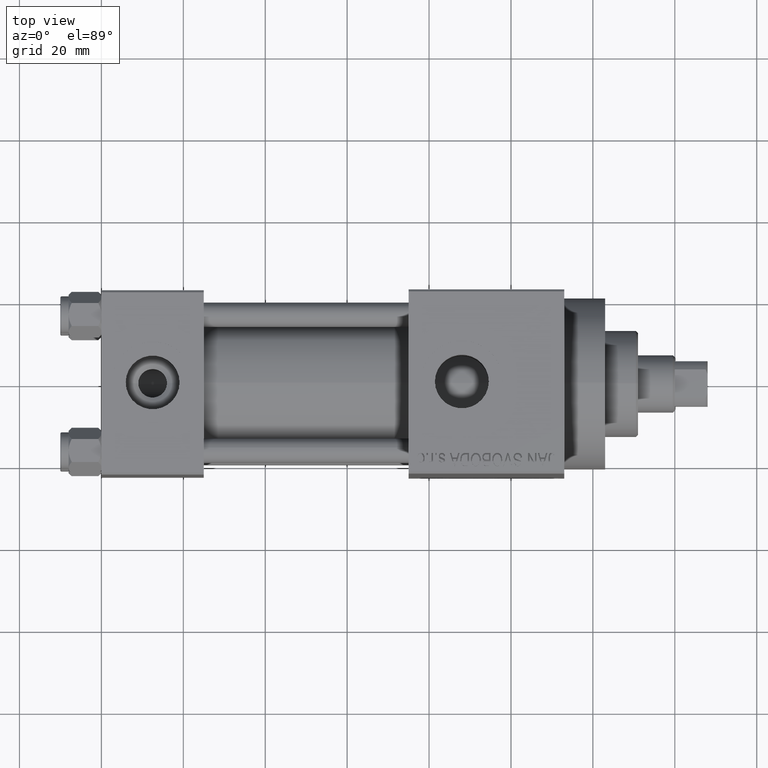
[diagram: clean part render]
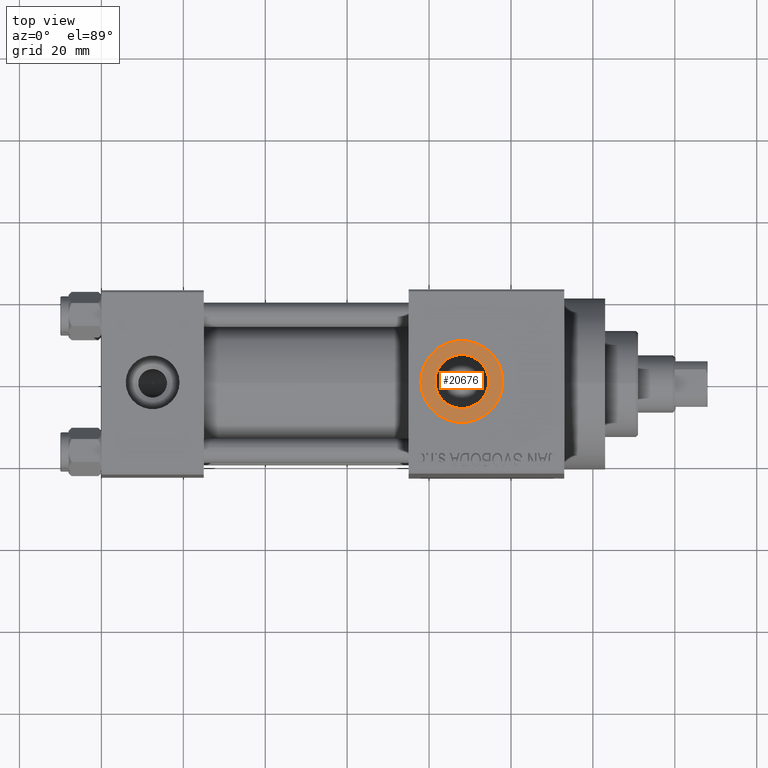
[diagram: same view with one face highlighted and labeled with its STEP entity id]
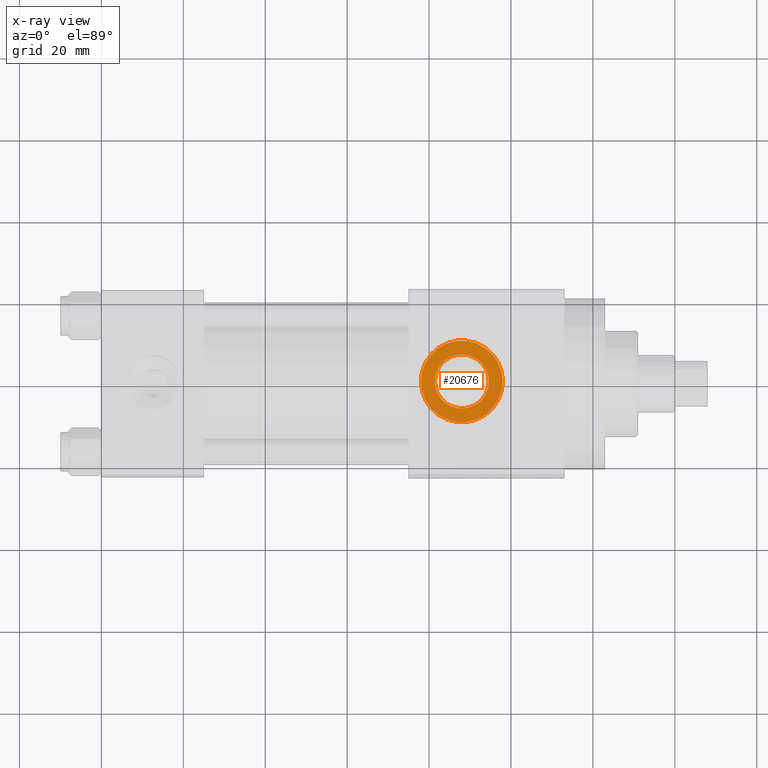
[diagram: x-ray of the same camera — body ghosted, the highlighted face saturated]
A machine part, top view. The second image highlights one B-rep face of the part: STEP entity #20676.
The next image is the same camera in x-ray: the body ghosted, the highlighted face saturated — about 0% of this face is hidden behind the body in this view.
In plain terms, the highlighted planar face has unit normal (0, 0, 1).
Its self-contained STEP definition (entity closure, byte-faithful):
#678 = CIRCLE ( 'NONE', #47117, 10.00000000000000888 ) ;
#1259 = EDGE_CURVE ( 'NONE', #32584, #33615, #7125, .T. ) ;
#4491 = CIRCLE ( 'NONE', #7535, 6.580000000000002736 ) ;
#6304 = CARTESIAN_POINT ( 'NONE',  ( 94.58000000000001251, 8.058175938389587461E-16, 34.80000000000000426 ) ) ;
#7125 = CIRCLE ( 'NONE', #41372, 6.580000000000002736 ) ;
#7535 = AXIS2_PLACEMENT_3D ( 'NONE', #32176, #38875, #28368 ) ;
#10655 = DIRECTION ( 'NONE',  ( -0.000000000000000000, -0.000000000000000000, -1.000000000000000000 ) ) ;
#11207 = ORIENTED_EDGE ( 'NONE', *, *, #37924, .T. ) ;
#11410 = FACE_OUTER_BOUND ( 'NONE', #43674, .T. ) ;
#12688 = CARTESIAN_POINT ( 'NONE',  ( 88.00000000000001421, 0.000000000000000000, 34.80000000000000426 ) ) ;
#13517 = CARTESIAN_POINT ( 'NONE',  ( 88.00000000000001421, 0.000000000000000000, 34.80000000000000426 ) ) ;
#15201 = ORIENTED_EDGE ( 'NONE', *, *, #37629, .T. ) ;
#15299 = EDGE_LOOP ( 'NONE', ( #15201, #19746 ) ) ;
#16584 = VERTEX_POINT ( 'NONE', #28769 ) ;
#18200 = CARTESIAN_POINT ( 'NONE',  ( 81.42000000000000171, 0.000000000000000000, 34.80000000000000426 ) ) ;
#19746 = ORIENTED_EDGE ( 'NONE', *, *, #1259, .T. ) ;
#20059 = DIRECTION ( 'NONE',  ( 1.000000000000000000, 0.000000000000000000, 0.000000000000000000 ) ) ;
#20676 = ADVANCED_FACE ( 'NONE', ( #43810, #11410 ), #29510, .T. ) ;
#22527 = VERTEX_POINT ( 'NONE', #28975 ) ;
#25402 = ORIENTED_EDGE ( 'NONE', *, *, #40966, .T. ) ;
#28368 = DIRECTION ( 'NONE',  ( 1.000000000000000000, 0.000000000000000000, 0.000000000000000000 ) ) ;
#28523 = DIRECTION ( 'NONE',  ( 1.000000000000000000, 0.000000000000000000, 0.000000000000000000 ) ) ;
#28542 = DIRECTION ( 'NONE',  ( 1.000000000000000000, 0.000000000000000000, 0.000000000000000000 ) ) ;
#28769 = CARTESIAN_POINT ( 'NONE',  ( 98.00000000000001421, 0.000000000000000000, 34.80000000000000426 ) ) ;
#28975 = CARTESIAN_POINT ( 'NONE',  ( 78.00000000000000000, 1.224646799147354440E-15, 34.80000000000000426 ) ) ;
#29039 = CARTESIAN_POINT ( 'NONE',  ( 88.00000000000001421, 0.000000000000000000, 34.80000000000000426 ) ) ;
#29510 = PLANE ( 'NONE',  #32999 ) ;
#32176 = CARTESIAN_POINT ( 'NONE',  ( 88.00000000000001421, 0.000000000000000000, 34.80000000000000426 ) ) ;
#32584 = VERTEX_POINT ( 'NONE', #6304 ) ;
#32845 = DIRECTION ( 'NONE',  ( 0.000000000000000000, 0.000000000000000000, 1.000000000000000000 ) ) ;
#32999 = AXIS2_PLACEMENT_3D ( 'NONE', #29039, #32845, #40248 ) ;
#33615 = VERTEX_POINT ( 'NONE', #18200 ) ;
#35241 = DIRECTION ( 'NONE',  ( 0.000000000000000000, 0.000000000000000000, 1.000000000000000000 ) ) ;
#37629 = EDGE_CURVE ( 'NONE', #33615, #32584, #4491, .T. ) ;
#37765 = CIRCLE ( 'NONE', #42316, 10.00000000000000888 ) ;
#37924 = EDGE_CURVE ( 'NONE', #22527, #16584, #678, .T. ) ;
#38192 = DIRECTION ( 'NONE',  ( 0.000000000000000000, 0.000000000000000000, 1.000000000000000000 ) ) ;
#38875 = DIRECTION ( 'NONE',  ( -0.000000000000000000, -0.000000000000000000, -1.000000000000000000 ) ) ;
#39053 = CARTESIAN_POINT ( 'NONE',  ( 88.00000000000001421, 0.000000000000000000, 34.80000000000000426 ) ) ;
#40248 = DIRECTION ( 'NONE',  ( 1.000000000000000000, 0.000000000000000000, -0.000000000000000000 ) ) ;
#40966 = EDGE_CURVE ( 'NONE', #16584, #22527, #37765, .T. ) ;
#41372 = AXIS2_PLACEMENT_3D ( 'NONE', #13517, #10655, #28523 ) ;
#42316 = AXIS2_PLACEMENT_3D ( 'NONE', #12688, #38192, #20059 ) ;
#43674 = EDGE_LOOP ( 'NONE', ( #25402, #11207 ) ) ;
#43810 = FACE_BOUND ( 'NONE', #15299, .T. ) ;
#47117 = AXIS2_PLACEMENT_3D ( 'NONE', #39053, #35241, #28542 ) ;